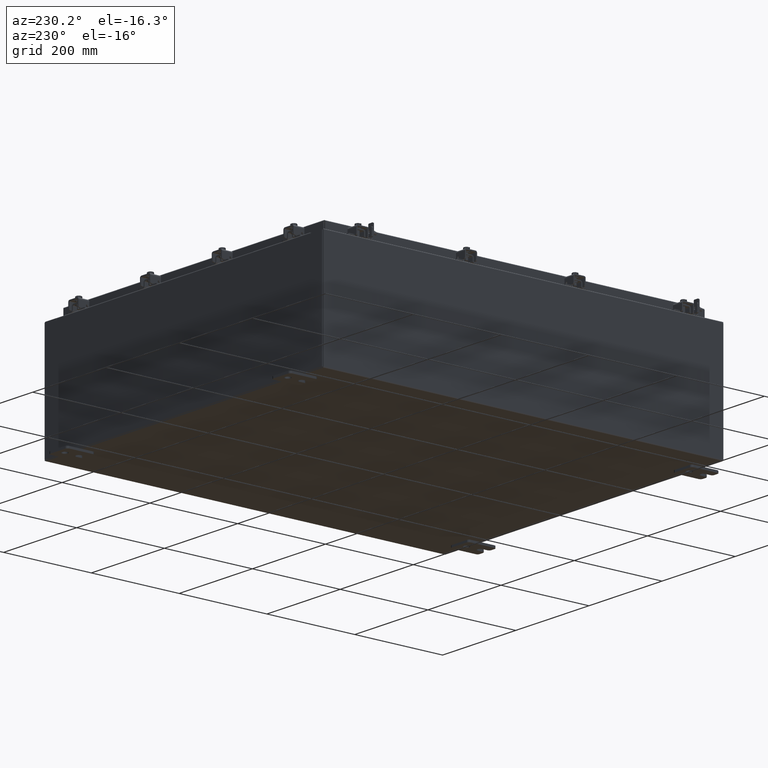
[diagram: clean part render]
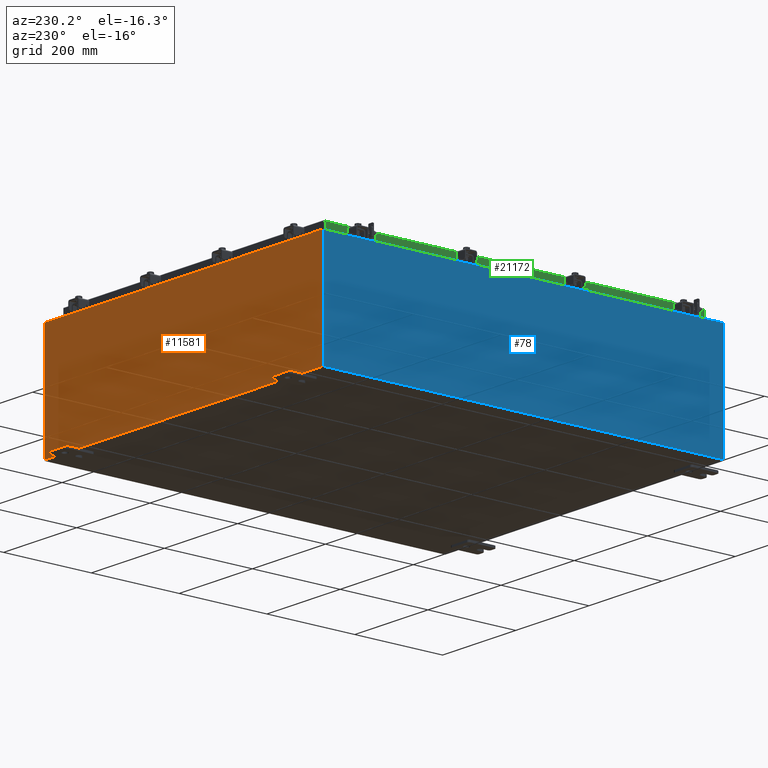
[diagram: same view with three faces highlighted in distinct colors, each labeled with its STEP entity id]
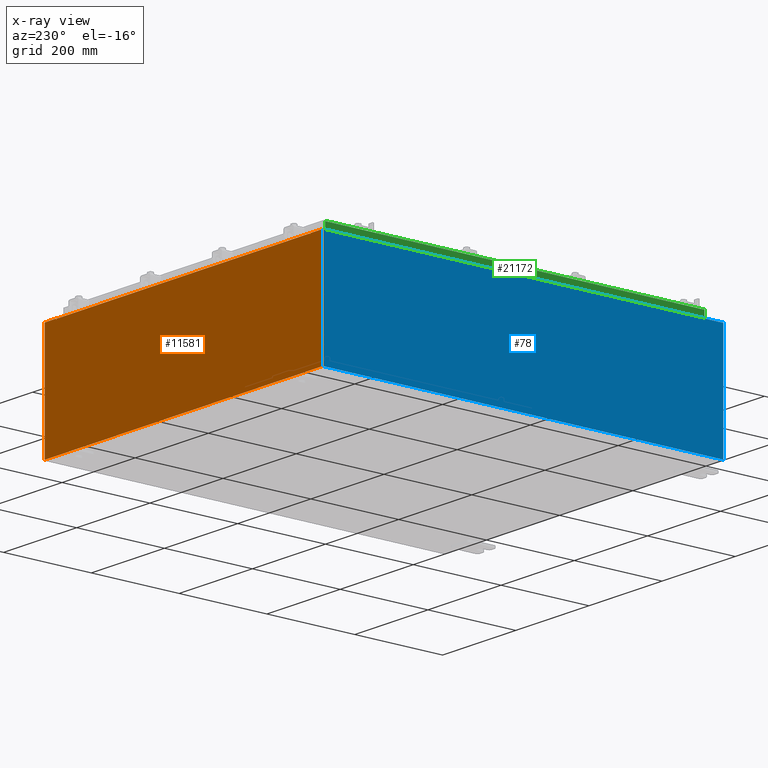
[diagram: x-ray of the same camera — body ghosted, the three highlighted faces saturated]
A machine part, auxiliary view with three faces highlighted in distinct colors.
The next image is the same camera in x-ray (body ghosted, the three faces saturated) — at least one of them is partly hidden behind the body in this view.
Their STEP definitions:

[orange] entity #11581 — the highlighted planar face has unit normal (0, -1, 0).
#40 = LINE ( 'NONE', #2305, #4461 ) ;
#215 = CARTESIAN_POINT ( 'NONE',  ( 14.92529999999999800, 0.0000000000000000000, -4.925300000000000000 ) ) ;
#466 = LINE ( 'NONE', #5943, #20637 ) ;
#682 = AXIS2_PLACEMENT_3D ( 'NONE', #6469, #23670, #12329 ) ;
#1004 = VERTEX_POINT ( 'NONE', #215 ) ;
#1185 = LINE ( 'NONE', #7138, #4440 ) ;
#1232 = ORIENTED_EDGE ( 'NONE', *, *, #12695, .T. ) ;
#1429 = ORIENTED_EDGE ( 'NONE', *, *, #10117, .T. ) ;
#1827 = DIRECTION ( 'NONE',  ( 0.0000000000000000000, 0.0000000000000000000, -1.000000000000000000 ) ) ;
#2129 = EDGE_CURVE ( 'NONE', #24353, #1004, #5985, .T. ) ;
#2305 = CARTESIAN_POINT ( 'NONE',  ( -14.92530000000000200, 0.0000000000000000000, 4.925300000000000000 ) ) ;
#2630 = CARTESIAN_POINT ( 'NONE',  ( -13.63720000000000000, -7.171100983368691200E-016, 4.912300000000000100 ) ) ;
#2735 = PLANE ( 'NONE',  #682 ) ;
#2745 = VECTOR ( 'NONE', #16765, 39.37007874015748100 ) ;
#3513 = CARTESIAN_POINT ( 'NONE',  ( -13.67455000000000000, -0.0000000000000000000, 0.0000000000000000000 ) ) ;
#3541 = AXIS2_PLACEMENT_3D ( 'NONE', #15177, #3831, #17074 ) ;
#3583 = CARTESIAN_POINT ( 'NONE',  ( -14.92530000000000200, 0.0000000000000000000, -4.925300000000000000 ) ) ;
#3629 = VERTEX_POINT ( 'NONE', #18367 ) ;
#3831 = DIRECTION ( 'NONE',  ( -0.0000000000000000000, 1.000000000000000000, -0.0000000000000000000 ) ) ;
#4440 = VECTOR ( 'NONE', #9127, 39.37007874015748100 ) ;
#4461 = VECTOR ( 'NONE', #17386, 39.37007874015748100 ) ;
#4568 = VECTOR ( 'NONE', #23335, 39.37007874015748100 ) ;
#4584 = CARTESIAN_POINT ( 'NONE',  ( 13.63719999999999800, 0.0000000000000000000, 4.874950000000000100 ) ) ;
#4804 = VECTOR ( 'NONE', #1827, 39.37007874015748100 ) ;
#5179 = VERTEX_POINT ( 'NONE', #20705 ) ;
#5304 = EDGE_CURVE ( 'NONE', #12976, #5179, #466, .T. ) ;
#5435 = ORIENTED_EDGE ( 'NONE', *, *, #11509, .F. ) ;
#5440 = VERTEX_POINT ( 'NONE', #2630 ) ;
#5678 = ORIENTED_EDGE ( 'NONE', *, *, #5304, .F. ) ;
#5767 = LINE ( 'NONE', #6390, #4568 ) ;
#5943 = CARTESIAN_POINT ( 'NONE',  ( 13.67454999999978500, -0.0000000000000000000, -5.935537951421795000E-013 ) ) ;
#5985 = LINE ( 'NONE', #22708, #4804 ) ;
#6390 = CARTESIAN_POINT ( 'NONE',  ( 13.63719999999999800, 0.0000000000000000000, 0.0000000000000000000 ) ) ;
#6469 = CARTESIAN_POINT ( 'NONE',  ( 0.0000000000000000000, 0.0000000000000000000, 0.0000000000000000000 ) ) ;
#6671 = VERTEX_POINT ( 'NONE', #24435 ) ;
#7138 = CARTESIAN_POINT ( 'NONE',  ( -13.63720000000000000, -0.0000000000000000000, 0.0000000000000000000 ) ) ;
#7855 = EDGE_CURVE ( 'NONE', #1004, #12793, #19685, .T. ) ;
#8174 = DIRECTION ( 'NONE',  ( -0.0000000000000000000, 1.000000000000000000, -0.0000000000000000000 ) ) ;
#8602 = VECTOR ( 'NONE', #13834, 39.37007874015748100 ) ;
#8981 = DIRECTION ( 'NONE',  ( 1.000000000000000000, 0.0000000000000000000, 0.0000000000000000000 ) ) ;
#8993 = LINE ( 'NONE', #16524, #12820 ) ;
#9127 = DIRECTION ( 'NONE',  ( 0.0000000000000000000, 0.0000000000000000000, -1.000000000000000000 ) ) ;
#9296 = VECTOR ( 'NONE', #23205, 39.37007874015748100 ) ;
#9619 = FACE_OUTER_BOUND ( 'NONE', #10654, .T. ) ;
#9625 = VECTOR ( 'NONE', #17067, 39.37007874015748100 ) ;
#9874 = ORIENTED_EDGE ( 'NONE', *, *, #11774, .F. ) ;
#9950 = EDGE_CURVE ( 'NONE', #5179, #11018, #22565, .T. ) ;
#10117 = EDGE_CURVE ( 'NONE', #12793, #16666, #40, .T. ) ;
#10459 = LINE ( 'NONE', #11833, #9296 ) ;
#10654 = EDGE_LOOP ( 'NONE', ( #18173, #9874, #18202, #1232, #5435, #14606, #5678, #14030, #13113, #22460, #1429, #11584 ) ) ;
#11018 = VERTEX_POINT ( 'NONE', #4584 ) ;
#11509 = EDGE_CURVE ( 'NONE', #11018, #16546, #5767, .T. ) ;
#11581 = ADVANCED_FACE ( 'NONE', ( #9619 ), #2735, .F. ) ;
#11584 = ORIENTED_EDGE ( 'NONE', *, *, #12376, .T. ) ;
#11774 = EDGE_CURVE ( 'NONE', #3629, #6671, #19981, .T. ) ;
#11833 = CARTESIAN_POINT ( 'NONE',  ( -14.92530000000000200, 0.0000000000000000000, 4.925300000000000000 ) ) ;
#11845 = VERTEX_POINT ( 'NONE', #15879 ) ;
#11914 = CARTESIAN_POINT ( 'NONE',  ( -14.92530000000000200, 0.0000000000000000000, 4.925300000000000000 ) ) ;
#12329 = DIRECTION ( 'NONE',  ( 0.0000000000000000000, -0.0000000000000000000, -1.000000000000000000 ) ) ;
#12336 = CARTESIAN_POINT ( 'NONE',  ( -14.92530000000000200, 0.0000000000000000000, 4.925300000000000000 ) ) ;
#12376 = EDGE_CURVE ( 'NONE', #16666, #11845, #10459, .T. ) ;
#12695 = EDGE_CURVE ( 'NONE', #5440, #16546, #8993, .T. ) ;
#12793 = VERTEX_POINT ( 'NONE', #3583 ) ;
#12820 = VECTOR ( 'NONE', #8981, 39.37007874015748100 ) ;
#12976 = VERTEX_POINT ( 'NONE', #15334 ) ;
#13113 = ORIENTED_EDGE ( 'NONE', *, *, #2129, .T. ) ;
#13834 = DIRECTION ( 'NONE',  ( 1.000000000000000000, 0.0000000000000000000, 0.0000000000000000000 ) ) ;
#14030 = ORIENTED_EDGE ( 'NONE', *, *, #20624, .T. ) ;
#14606 = ORIENTED_EDGE ( 'NONE', *, *, #9950, .F. ) ;
#14978 = EDGE_CURVE ( 'NONE', #5440, #3629, #1185, .T. ) ;
#15177 = CARTESIAN_POINT ( 'NONE',  ( 13.65587499999999800, 0.0000000000000000000, 4.874950000000000100 ) ) ;
#15334 = CARTESIAN_POINT ( 'NONE',  ( 13.67455000000000000, 0.0000000000000000000, 4.925300000000000000 ) ) ;
#15879 = CARTESIAN_POINT ( 'NONE',  ( -13.67455000000000000, 0.0000000000000000000, 4.925300000000000000 ) ) ;
#16524 = CARTESIAN_POINT ( 'NONE',  ( -13.63720000000000400, -7.171100983368691200E-016, 4.912300000000000100 ) ) ;
#16546 = VERTEX_POINT ( 'NONE', #19488 ) ;
#16666 = VERTEX_POINT ( 'NONE', #12336 ) ;
#16765 = DIRECTION ( 'NONE',  ( 0.0000000000000000000, 0.0000000000000000000, 1.000000000000000000 ) ) ;
#17067 = DIRECTION ( 'NONE',  ( -1.000000000000000000, -0.0000000000000000000, -0.0000000000000000000 ) ) ;
#17074 = DIRECTION ( 'NONE',  ( 0.0000000000000000000, 0.0000000000000000000, -1.000000000000000000 ) ) ;
#17386 = DIRECTION ( 'NONE',  ( -0.0000000000000000000, -0.0000000000000000000, 1.000000000000000000 ) ) ;
#18173 = ORIENTED_EDGE ( 'NONE', *, *, #18803, .F. ) ;
#18202 = ORIENTED_EDGE ( 'NONE', *, *, #14978, .F. ) ;
#18244 = CARTESIAN_POINT ( 'NONE',  ( 14.92529999999999800, 0.0000000000000000000, 4.925300000000000000 ) ) ;
#18367 = CARTESIAN_POINT ( 'NONE',  ( -13.63720000000000000, -0.0000000000000000000, 4.874950000000000100 ) ) ;
#18471 = AXIS2_PLACEMENT_3D ( 'NONE', #19520, #8174, #21420 ) ;
#18667 = LINE ( 'NONE', #11914, #8602 ) ;
#18803 = EDGE_CURVE ( 'NONE', #6671, #11845, #19046, .T. ) ;
#18949 = CARTESIAN_POINT ( 'NONE',  ( -14.92530000000000200, 0.0000000000000000000, -4.925300000000000000 ) ) ;
#19046 = LINE ( 'NONE', #3513, #2745 ) ;
#19207 = DIRECTION ( 'NONE',  ( -4.340572780400004900E-014, 0.0000000000000000000, -1.000000000000000000 ) ) ;
#19488 = CARTESIAN_POINT ( 'NONE',  ( 13.63719999999999800, 0.0000000000000000000, 4.912300000000000100 ) ) ;
#19520 = CARTESIAN_POINT ( 'NONE',  ( -13.65587500000000000, 0.0000000000000000000, 4.874950000000000100 ) ) ;
#19685 = LINE ( 'NONE', #18949, #9625 ) ;
#19981 = CIRCLE ( 'NONE', #18471, 0.01867499999999949400 ) ;
#20624 = EDGE_CURVE ( 'NONE', #12976, #24353, #18667, .T. ) ;
#20637 = VECTOR ( 'NONE', #19207, 39.37007874015748100 ) ;
#20705 = CARTESIAN_POINT ( 'NONE',  ( 13.67454999999999800, 0.0000000000000000000, 4.874950000000000100 ) ) ;
#21420 = DIRECTION ( 'NONE',  ( 0.0000000000000000000, 0.0000000000000000000, -1.000000000000000000 ) ) ;
#22460 = ORIENTED_EDGE ( 'NONE', *, *, #7855, .T. ) ;
#22565 = CIRCLE ( 'NONE', #3541, 0.01867499999999949400 ) ;
#22708 = CARTESIAN_POINT ( 'NONE',  ( 14.92529999999999800, 0.0000000000000000000, 4.925300000000000000 ) ) ;
#23205 = DIRECTION ( 'NONE',  ( 1.000000000000000000, 0.0000000000000000000, 0.0000000000000000000 ) ) ;
#23335 = DIRECTION ( 'NONE',  ( 0.0000000000000000000, 0.0000000000000000000, 1.000000000000000000 ) ) ;
#23670 = DIRECTION ( 'NONE',  ( 0.0000000000000000000, -1.000000000000000000, 0.0000000000000000000 ) ) ;
#24353 = VERTEX_POINT ( 'NONE', #18244 ) ;
#24435 = CARTESIAN_POINT ( 'NONE',  ( -13.67455000000000000, 0.0000000000000000000, 4.874950000000000100 ) ) ;

[blue] entity #78 — the highlighted planar face has unit normal (1, 0, 0).
#78 = ADVANCED_FACE ( 'NONE', ( #23538 ), #833, .F. ) ;
#833 = PLANE ( 'NONE',  #11980 ) ;
#1092 = CARTESIAN_POINT ( 'NONE',  ( -15.00000000000000400, 0.0000000000000000000, -5.310705656892490100E-014 ) ) ;
#1534 = VECTOR ( 'NONE', #19097, 39.37007874015748100 ) ;
#2041 = VERTEX_POINT ( 'NONE', #5396 ) ;
#2883 = VECTOR ( 'NONE', #3116, 39.37007874015748100 ) ;
#3116 = DIRECTION ( 'NONE',  ( -3.523082860860888200E-015, 0.0000000000000000000, 1.000000000000000000 ) ) ;
#3498 = LINE ( 'NONE', #12535, #2883 ) ;
#4558 = ORIENTED_EDGE ( 'NONE', *, *, #19313, .T. ) ;
#5396 = CARTESIAN_POINT ( 'NONE',  ( -15.00000000000000400, 17.92530000000000000, 0.01299999999999984300 ) ) ;
#5683 = EDGE_CURVE ( 'NONE', #8076, #13039, #22405, .T. ) ;
#6029 = VECTOR ( 'NONE', #15606, 39.37007874015748100 ) ;
#6823 = EDGE_CURVE ( 'NONE', #18805, #2041, #11084, .T. ) ;
#6834 = DIRECTION ( 'NONE',  ( 1.000000000000000000, 0.0000000000000000000, 3.523082860860887800E-015 ) ) ;
#7324 = CARTESIAN_POINT ( 'NONE',  ( -15.00000000000000400, -17.92530000000000000, 0.01299999999999984700 ) ) ;
#7761 = CARTESIAN_POINT ( 'NONE',  ( -15.00000000000000400, 17.92530000000000000, -5.310705656892490100E-014 ) ) ;
#8076 = VERTEX_POINT ( 'NONE', #23654 ) ;
#8409 = ORIENTED_EDGE ( 'NONE', *, *, #5683, .T. ) ;
#9885 = CARTESIAN_POINT ( 'NONE',  ( -15.00000000000000400, 17.92530000000000000, 0.01299999999999984700 ) ) ;
#10911 = DIRECTION ( 'NONE',  ( 0.0000000000000000000, 1.000000000000000000, 0.0000000000000000000 ) ) ;
#11084 = LINE ( 'NONE', #9885, #6029 ) ;
#11980 = AXIS2_PLACEMENT_3D ( 'NONE', #1092, #6834, #23931 ) ;
#12290 = VECTOR ( 'NONE', #10911, 39.37007874015748100 ) ;
#12535 = CARTESIAN_POINT ( 'NONE',  ( -15.00000000000000400, -17.92530000000000000, -5.310705656892490100E-014 ) ) ;
#12801 = LINE ( 'NONE', #7761, #1534 ) ;
#13039 = VERTEX_POINT ( 'NONE', #13652 ) ;
#13652 = CARTESIAN_POINT ( 'NONE',  ( -15.00000000000003700, 17.92530000000000000, 9.837599999999998300 ) ) ;
#14260 = EDGE_LOOP ( 'NONE', ( #8409, #4558, #15703, #15514 ) ) ;
#15514 = ORIENTED_EDGE ( 'NONE', *, *, #23714, .T. ) ;
#15606 = DIRECTION ( 'NONE',  ( -0.0000000000000000000, 1.000000000000000000, -0.0000000000000000000 ) ) ;
#15703 = ORIENTED_EDGE ( 'NONE', *, *, #6823, .F. ) ;
#18805 = VERTEX_POINT ( 'NONE', #7324 ) ;
#19097 = DIRECTION ( 'NONE',  ( 3.523082860860888200E-015, 0.0000000000000000000, -1.000000000000000000 ) ) ;
#19313 = EDGE_CURVE ( 'NONE', #13039, #2041, #12801, .T. ) ;
#22267 = CARTESIAN_POINT ( 'NONE',  ( -15.00000000000003700, -17.92530000000000000, 9.837599999999998300 ) ) ;
#22405 = LINE ( 'NONE', #22267, #12290 ) ;
#23538 = FACE_OUTER_BOUND ( 'NONE', #14260, .T. ) ;
#23654 = CARTESIAN_POINT ( 'NONE',  ( -15.00000000000003700, -17.92530000000000000, 9.837599999999998300 ) ) ;
#23714 = EDGE_CURVE ( 'NONE', #18805, #8076, #3498, .T. ) ;
#23931 = DIRECTION ( 'NONE',  ( 3.523082860860887800E-015, 0.0000000000000000000, -1.000000000000000000 ) ) ;

[green] entity #21172 — the highlighted planar face has unit normal (1, 0, -0).
#233 = DIRECTION ( 'NONE',  ( 1.000000000000000000, 3.491332948470575600E-031, -2.818880942772360100E-015 ) ) ;
#1672 = DIRECTION ( 'NONE',  ( 3.491332948470575600E-031, -1.000000000000000000, -9.516562228463834600E-046 ) ) ;
#2268 = VECTOR ( 'NONE', #5078, 39.37007874015748100 ) ;
#3125 = VECTOR ( 'NONE', #14771, 39.37007874015748100 ) ;
#3670 = CARTESIAN_POINT ( 'NONE',  ( -14.07799999999999400, 16.25515786437627200, -0.8500000000000025300 ) ) ;
#3958 = EDGE_CURVE ( 'NONE', #5761, #16922, #5544, .T. ) ;
#5078 = DIRECTION ( 'NONE',  ( 4.379057701015054300E-047, 1.000000000000000000, 1.238552822680358400E-016 ) ) ;
#5544 = LINE ( 'NONE', #11701, #10572 ) ;
#5761 = VERTEX_POINT ( 'NONE', #21774 ) ;
#7026 = CARTESIAN_POINT ( 'NONE',  ( -14.07799999999999900, 17.00515786437626500, 1.586914022634634500E-013 ) ) ;
#7664 = EDGE_CURVE ( 'NONE', #22323, #11749, #8146, .T. ) ;
#7856 = ORIENTED_EDGE ( 'NONE', *, *, #18003, .T. ) ;
#8146 = LINE ( 'NONE', #18564, #3125 ) ;
#8213 = CARTESIAN_POINT ( 'NONE',  ( -14.07799999999999900, -17.00515786437626900, -0.08770000000000007000 ) ) ;
#8968 = LINE ( 'NONE', #11647, #13980 ) ;
#9021 = CARTESIAN_POINT ( 'NONE',  ( -14.07799999999999900, 17.00515786437626500, -0.08770000000000007000 ) ) ;
#9684 = PLANE ( 'NONE',  #18820 ) ;
#10572 = VECTOR ( 'NONE', #23063, 39.37007874015748100 ) ;
#11545 = CARTESIAN_POINT ( 'NONE',  ( -14.07799999999999900, -4.915098524856876500E-030, 3.994501956836086200E-014 ) ) ;
#11647 = CARTESIAN_POINT ( 'NONE',  ( -14.07800000000000300, -17.09400000000000100, -0.8499999999999996400 ) ) ;
#11701 = CARTESIAN_POINT ( 'NONE',  ( -14.07799999999999400, -16.25515786437626900, -0.8500000000000025300 ) ) ;
#11709 = VECTOR ( 'NONE', #20262, 39.37007874015748100 ) ;
#11749 = VERTEX_POINT ( 'NONE', #20374 ) ;
#11952 = EDGE_LOOP ( 'NONE', ( #20584, #7856, #12751, #12802, #22956, #15225 ) ) ;
#12306 = LINE ( 'NONE', #7026, #11709 ) ;
#12751 = ORIENTED_EDGE ( 'NONE', *, *, #23763, .F. ) ;
#12790 = EDGE_CURVE ( 'NONE', #14348, #22323, #21703, .T. ) ;
#12802 = ORIENTED_EDGE ( 'NONE', *, *, #3958, .F. ) ;
#13477 = DIRECTION ( 'NONE',  ( -2.818880942772360100E-015, 0.0000000000000000000, -1.000000000000000000 ) ) ;
#13559 = DIRECTION ( 'NONE',  ( 4.379057701015054300E-047, 1.000000000000000000, 1.238552822680358400E-016 ) ) ;
#13929 = EDGE_CURVE ( 'NONE', #11749, #5761, #8968, .T. ) ;
#13980 = VECTOR ( 'NONE', #13559, 39.37007874015748100 ) ;
#14138 = VERTEX_POINT ( 'NONE', #23645 ) ;
#14348 = VERTEX_POINT ( 'NONE', #9021 ) ;
#14771 = DIRECTION ( 'NONE',  ( -2.818880942772360500E-015, 6.982962677686269100E-015, -1.000000000000000000 ) ) ;
#15225 = ORIENTED_EDGE ( 'NONE', *, *, #7664, .F. ) ;
#16073 = VECTOR ( 'NONE', #1672, 39.37007874015748100 ) ;
#16922 = VERTEX_POINT ( 'NONE', #3670 ) ;
#17391 = LINE ( 'NONE', #20246, #2268 ) ;
#18003 = EDGE_CURVE ( 'NONE', #14348, #14138, #12306, .T. ) ;
#18564 = CARTESIAN_POINT ( 'NONE',  ( -14.07799999999999900, -17.00515786437627200, -0.07469999999999978000 ) ) ;
#18820 = AXIS2_PLACEMENT_3D ( 'NONE', #11545, #233, #13477 ) ;
#20246 = CARTESIAN_POINT ( 'NONE',  ( -14.07800000000000300, -17.09400000000000100, -0.8499999999999996400 ) ) ;
#20262 = DIRECTION ( 'NONE',  ( -2.818880942772360500E-015, 6.982962677686269100E-015, -1.000000000000000000 ) ) ;
#20374 = CARTESIAN_POINT ( 'NONE',  ( -14.07800000000000300, -17.00515786437626900, -0.8499999999999996400 ) ) ;
#20584 = ORIENTED_EDGE ( 'NONE', *, *, #12790, .F. ) ;
#21172 = ADVANCED_FACE ( 'NONE', ( #23085 ), #9684, .F. ) ;
#21703 = LINE ( 'NONE', #24324, #16073 ) ;
#21774 = CARTESIAN_POINT ( 'NONE',  ( -14.07799999999999400, -16.25515786437626500, -0.8500000000000025300 ) ) ;
#22323 = VERTEX_POINT ( 'NONE', #8213 ) ;
#22956 = ORIENTED_EDGE ( 'NONE', *, *, #13929, .F. ) ;
#23063 = DIRECTION ( 'NONE',  ( -0.0000000000000000000, 1.000000000000000000, -0.0000000000000000000 ) ) ;
#23085 = FACE_OUTER_BOUND ( 'NONE', #11952, .T. ) ;
#23645 = CARTESIAN_POINT ( 'NONE',  ( -14.07800000000000300, 17.00515786437627200, -0.8499999999999953100 ) ) ;
#23763 = EDGE_CURVE ( 'NONE', #16922, #14138, #17391, .T. ) ;
#24324 = CARTESIAN_POINT ( 'NONE',  ( -14.07799999999999900, -17.09400000000000100, -0.08770000000000007000 ) ) ;